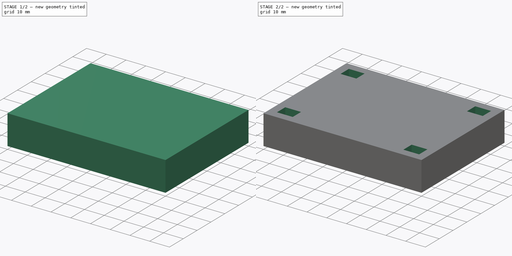
[diagram: build sequence overview — one tinted view per stage of 2, left to right]
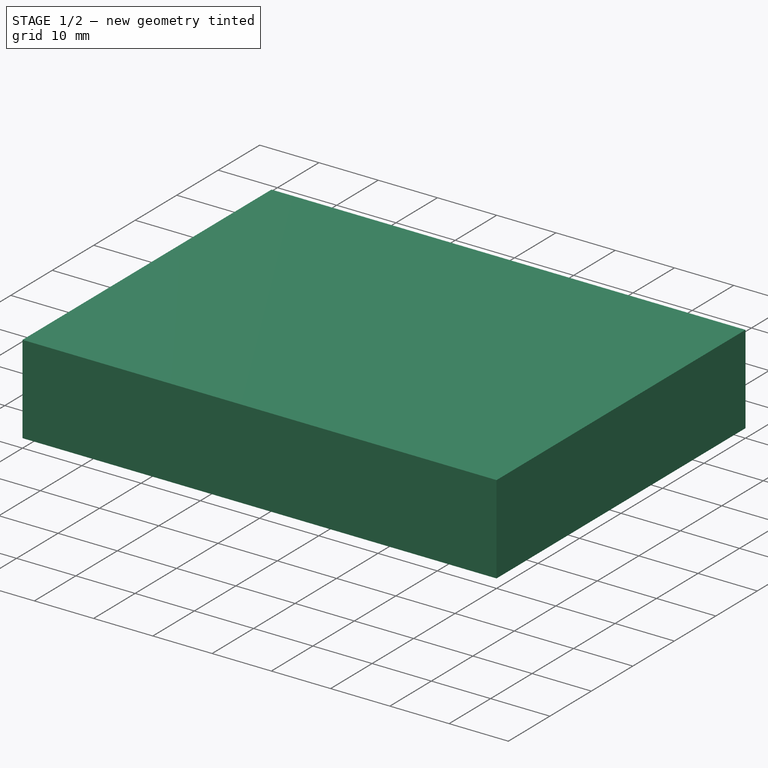
[diagram: stage 1 of 2 — iso view after this stage's code; geometry added in this stage tinted green]
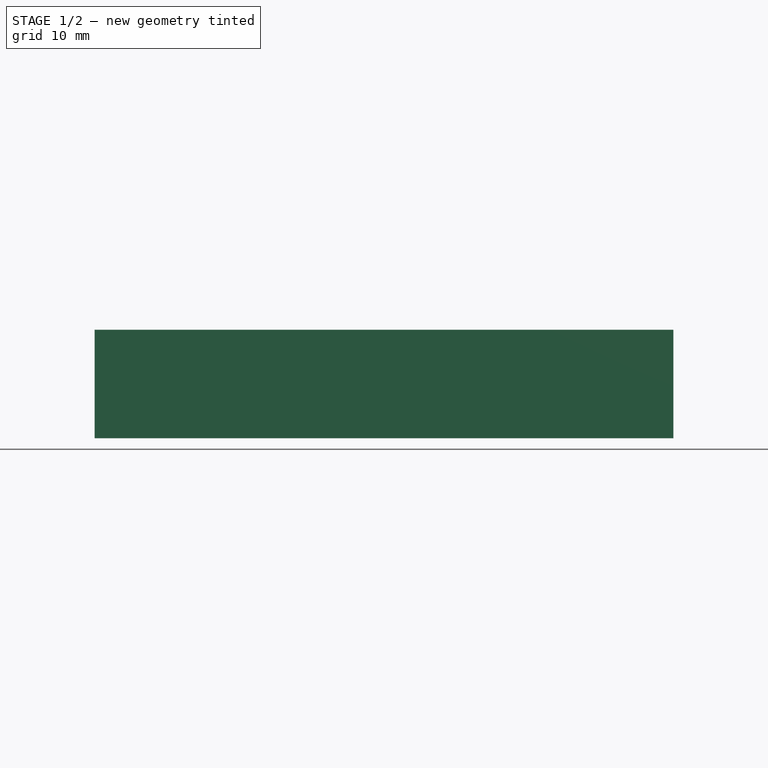
[diagram: stage 1 of 2 — front view after this stage's code; geometry added in this stage tinted green]
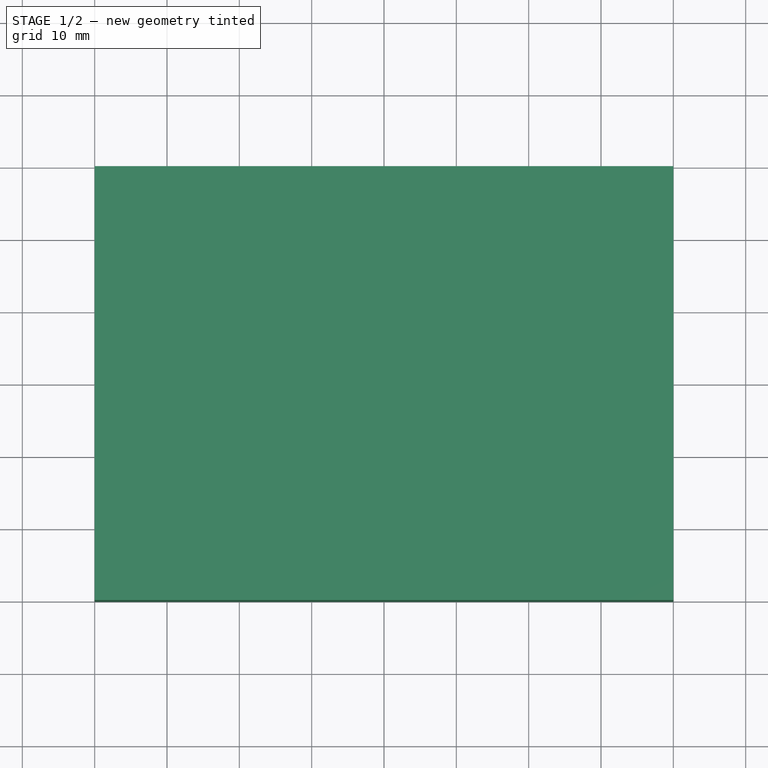
[diagram: stage 1 of 2 — top view after this stage's code; geometry added in this stage tinted green]
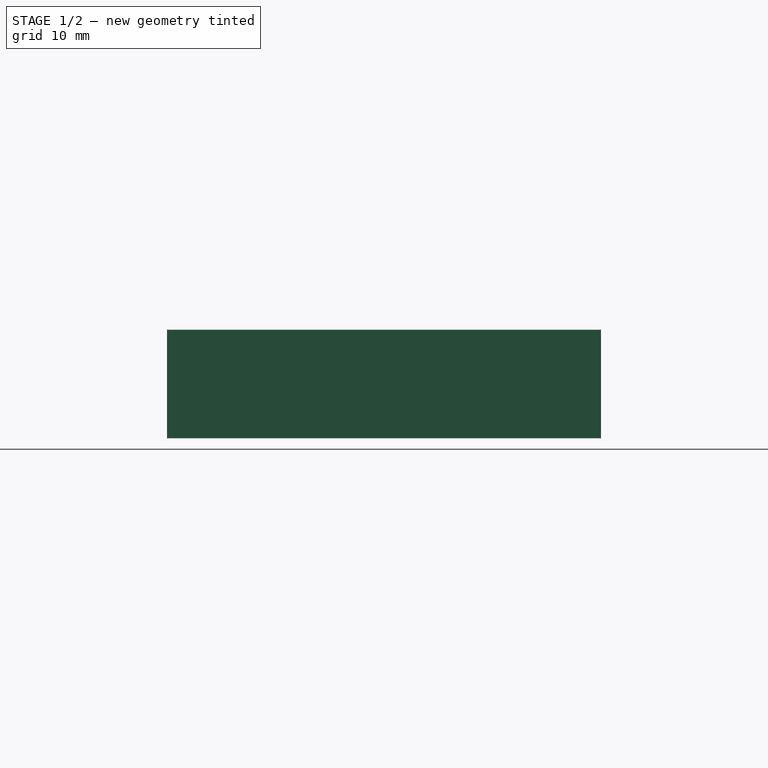
[diagram: stage 1 of 2 — right view after this stage's code; geometry added in this stage tinted green]
FCSTD DOCUMENT  (FreeCAD 0.16R6707 (Git))
Label: Base_mas_Alojamietos
License: CreativeCommons Attribution-ShareAlike
LicenseURL: http://creativecommons.org/licenses/by-sa/4.0/
objects: Sketcher::SketchObject×2, PartDesign::Pad×1, PartDesign::Pocket×1
note: 6 computed .brp shape members not serialized (recipe doc carries the construction recipe); baked Part::Feature solids carry a one-line shape summary decoded from their .brp

FEATURE [Sketcher::SketchObject] Sketch
  sketch-geometry (4):
    g0: LineSegment StartX=-40 StartY=-30 StartZ=0 EndX=40 EndY=-30 EndZ=0
    g1: LineSegment StartX=40 StartY=-30 StartZ=0 EndX=40 EndY=30 EndZ=0
    g2: LineSegment StartX=40 StartY=30 StartZ=0 EndX=-40 EndY=30 EndZ=0
    g3: LineSegment StartX=-40 StartY=30 StartZ=0 EndX=-40 EndY=-30 EndZ=0
  constraints (12):
    c: Coincident(g0,g1)
    c: Coincident(g1,g2)
    c: Coincident(g2,g3)
    c: Coincident(g3,g0)
    c: Horizontal(g0)
    c: Horizontal(g2)
    c: Vertical(g1)
    c: Vertical(g3)
    c: Symmetric(g1,g2,g-2)
    c: Symmetric(g1,g0,g-1)
    c: DistanceX(g2,g2) = 80
    c: DistanceY(g1,g1) = 60
FEATURE [PartDesign::Pad] Pad  label="Base"
  Length = 15
  Length2 = 100
  Sketch = -> Sketch
  Type = 0
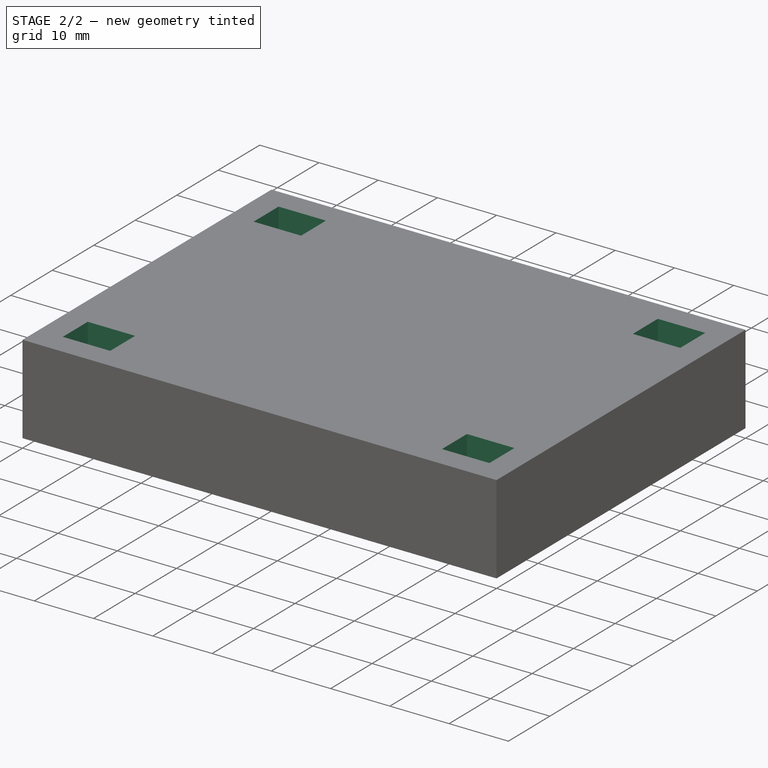
[diagram: stage 2 of 2 — iso view after this stage's code; geometry added in this stage tinted green]
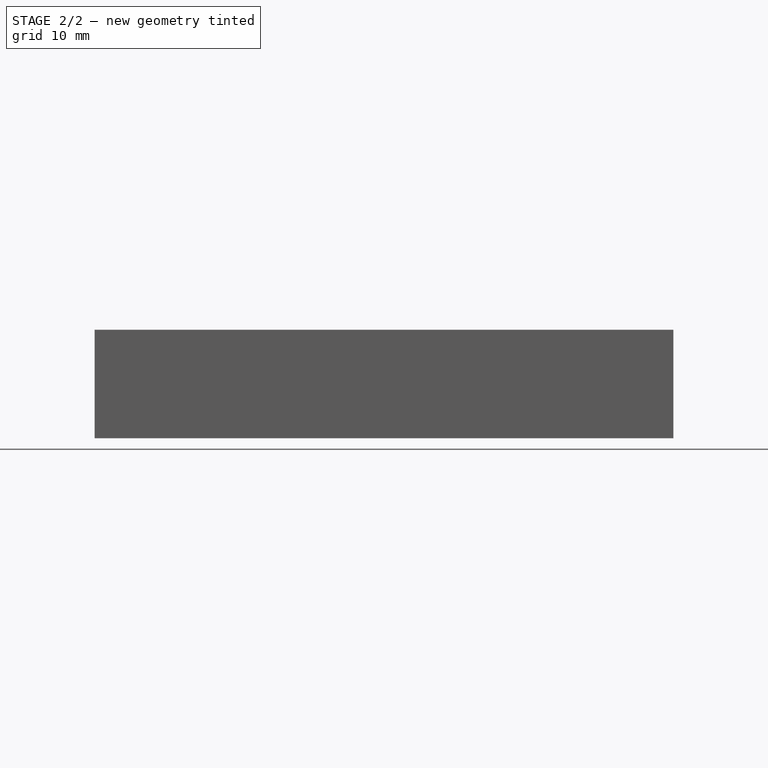
[diagram: stage 2 of 2 — front view after this stage's code; geometry added in this stage tinted green]
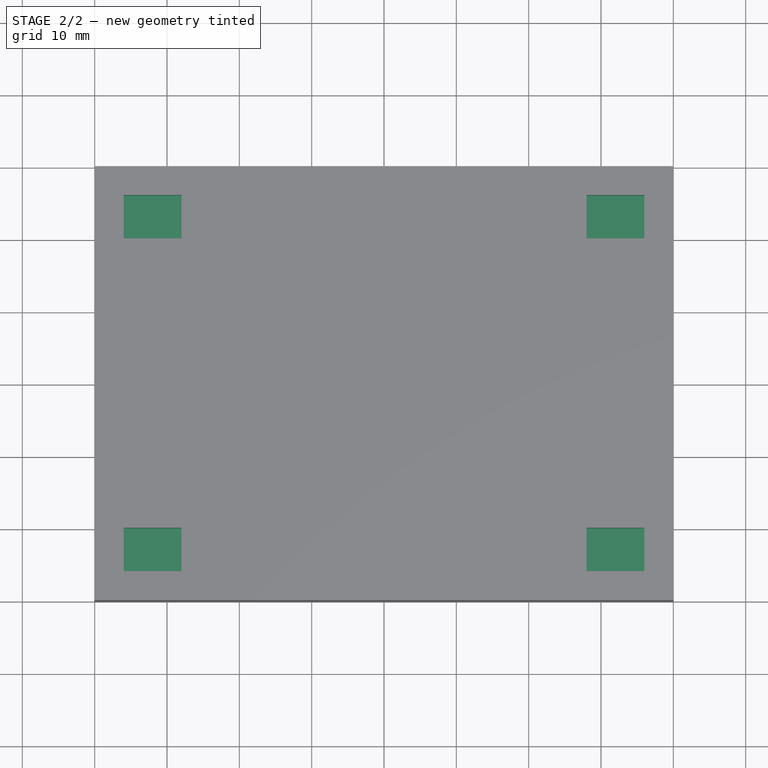
[diagram: stage 2 of 2 — top view after this stage's code; geometry added in this stage tinted green]
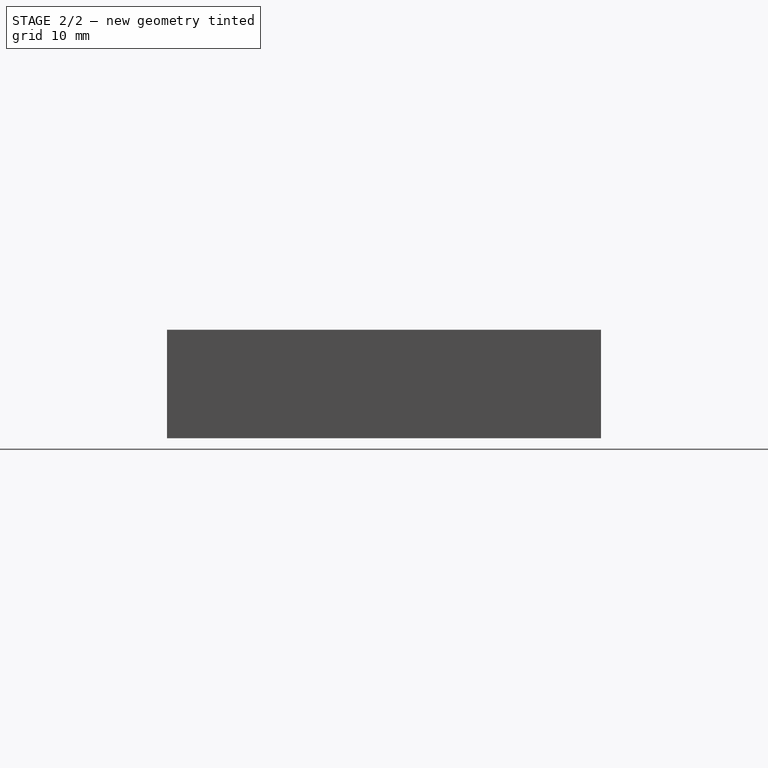
[diagram: stage 2 of 2 — right view after this stage's code; geometry added in this stage tinted green]
FEATURE [Sketcher::SketchObject] Sketch001  label="BCT_Alojamientos"
  ExternalGeometry = -> [Pad]
  Placement = pos=(0,0,15) rot=(0,0,1;0rad)
  Support = -> Pad [Face6]
  sketch-geometry (16):
    g0: LineSegment StartX=-36 StartY=20 StartZ=0 EndX=-28 EndY=20 EndZ=0
    g1: LineSegment StartX=-28 StartY=20 StartZ=0 EndX=-28 EndY=26 EndZ=0
    g2: LineSegment StartX=-28 StartY=26 StartZ=0 EndX=-36 EndY=26 EndZ=0
    g3: LineSegment StartX=-36 StartY=26 StartZ=0 EndX=-36 EndY=20 EndZ=0
    g4: LineSegment StartX=28 StartY=20 StartZ=0 EndX=36 EndY=20 EndZ=0
    g5: LineSegment StartX=36 StartY=20 StartZ=0 EndX=36 EndY=26 EndZ=0
    g6: LineSegment StartX=36 StartY=26 StartZ=0 EndX=28 EndY=26 EndZ=0
    g7: LineSegment StartX=28 StartY=26 StartZ=0 EndX=28 EndY=20 EndZ=0
    g8: LineSegment StartX=28 StartY=-26 StartZ=0 EndX=36 EndY=-26 EndZ=0
    g9: LineSegment StartX=36 StartY=-26 StartZ=0 EndX=36 EndY=-20 EndZ=0
    g10: LineSegment StartX=36 StartY=-20 StartZ=0 EndX=28 EndY=-20 EndZ=0
    g11: LineSegment StartX=28 StartY=-20 StartZ=0 EndX=28 EndY=-26 EndZ=0
    g12: LineSegment StartX=-36 StartY=-26 StartZ=0 EndX=-28 EndY=-26 EndZ=0
    g13: LineSegment StartX=-28 StartY=-26 StartZ=0 EndX=-28 EndY=-20 EndZ=0
    g14: LineSegment StartX=-28 StartY=-20 StartZ=0 EndX=-36 EndY=-20 EndZ=0
    g15: LineSegment StartX=-36 StartY=-20 StartZ=0 EndX=-36 EndY=-26 EndZ=0
  constraints (45):
    c: Coincident(g0,g1)
    c: Coincident(g1,g2)
    c: Coincident(g2,g3)
    c: Coincident(g3,g0)
    c: Horizontal(g0)
    c: Horizontal(g2)
    c: Vertical(g1)
    c: Vertical(g3)
    c: Coincident(g4,g5)
    c: Coincident(g5,g6)
    c: Coincident(g6,g7)
    c: Coincident(g7,g4)
    c: Horizontal(g4)
    c: Horizontal(g6)
    c: Vertical(g5)
    c: Vertical(g7)
    c: Coincident(g8,g9)
    c: Coincident(g9,g10)
    c: Coincident(g10,g11)
    c: Coincident(g11,g8)
    c: Horizontal(g8)
    c: Horizontal(g10)
    c: Vertical(g9)
    c: Vertical(g11)
    c: Coincident(g12,g13)
    c: Coincident(g13,g14)
    c: Coincident(g14,g15)
    c: Coincident(g15,g12)
    c: Horizontal(g12)
    c: Horizontal(g14)
    c: Vertical(g13)
    c: Vertical(g15)
    c: Equal(g2,g14)
    c: Equal(g14,g10)
    c: Equal(g10,g6)
    c: Equal(g1,g7)
    c: Equal(g7,g11)
    c: Equal(g11,g15)
    c: DistanceX(g-4,g2) = 4
    c: DistanceY(g2,g-4) = 4
    c: Symmetric(g0,g4,g-2)
    c: Symmetric(g4,g10,g-1)
    c: Symmetric(g10,g13,g-2)
    c: DistanceY(g1,g1) = 6
    c: DistanceX(g0,g0) = 8
FEATURE [PartDesign::Pocket] Pocket  label="Base_mas_alojamientos"
  Length = 5
  Sketch = -> Sketch001
  Type = 0
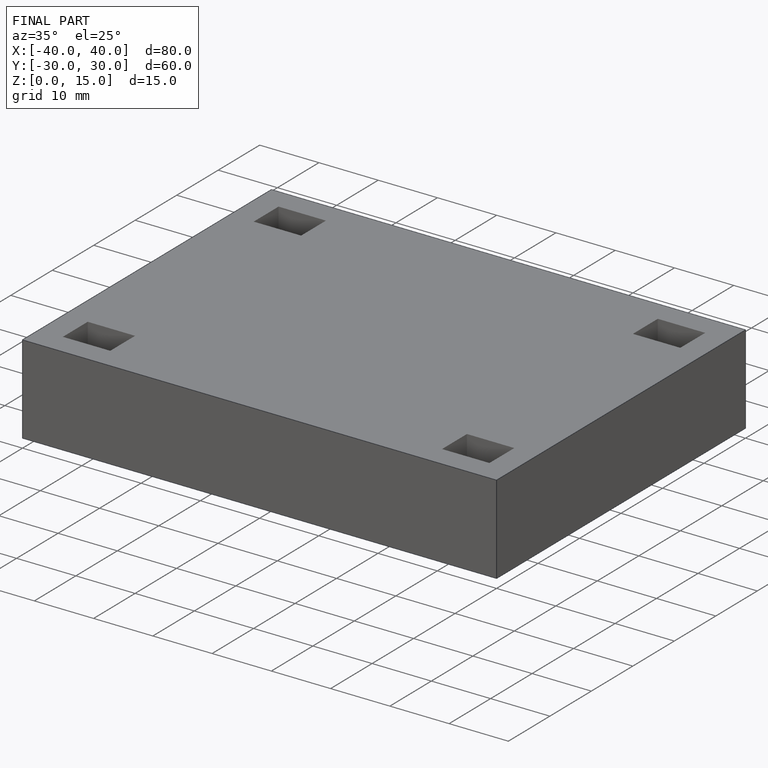
[diagram: finished part — iso view with bounding-box wireframe]
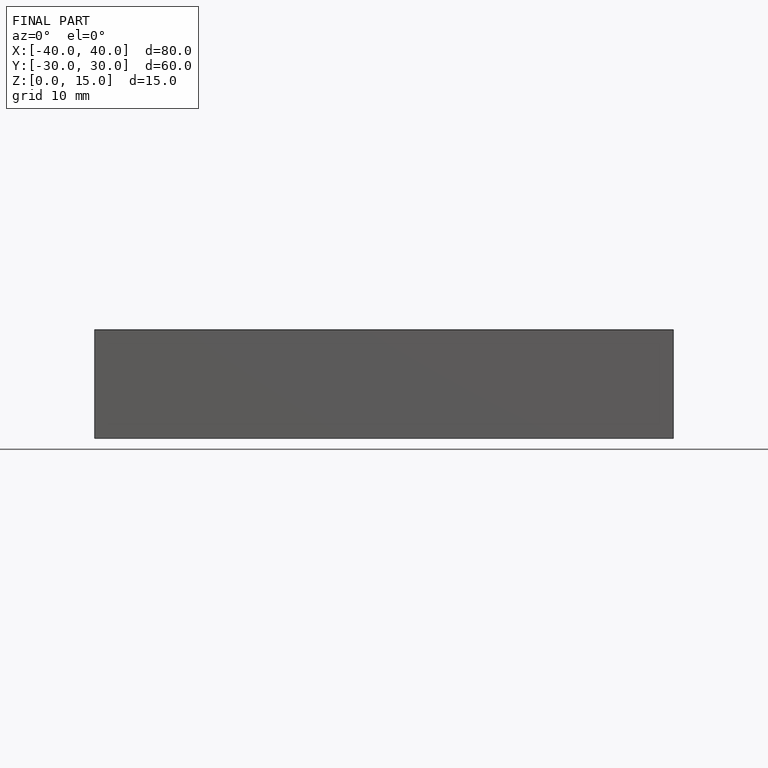
[diagram: finished part — front view with bounding-box wireframe]
